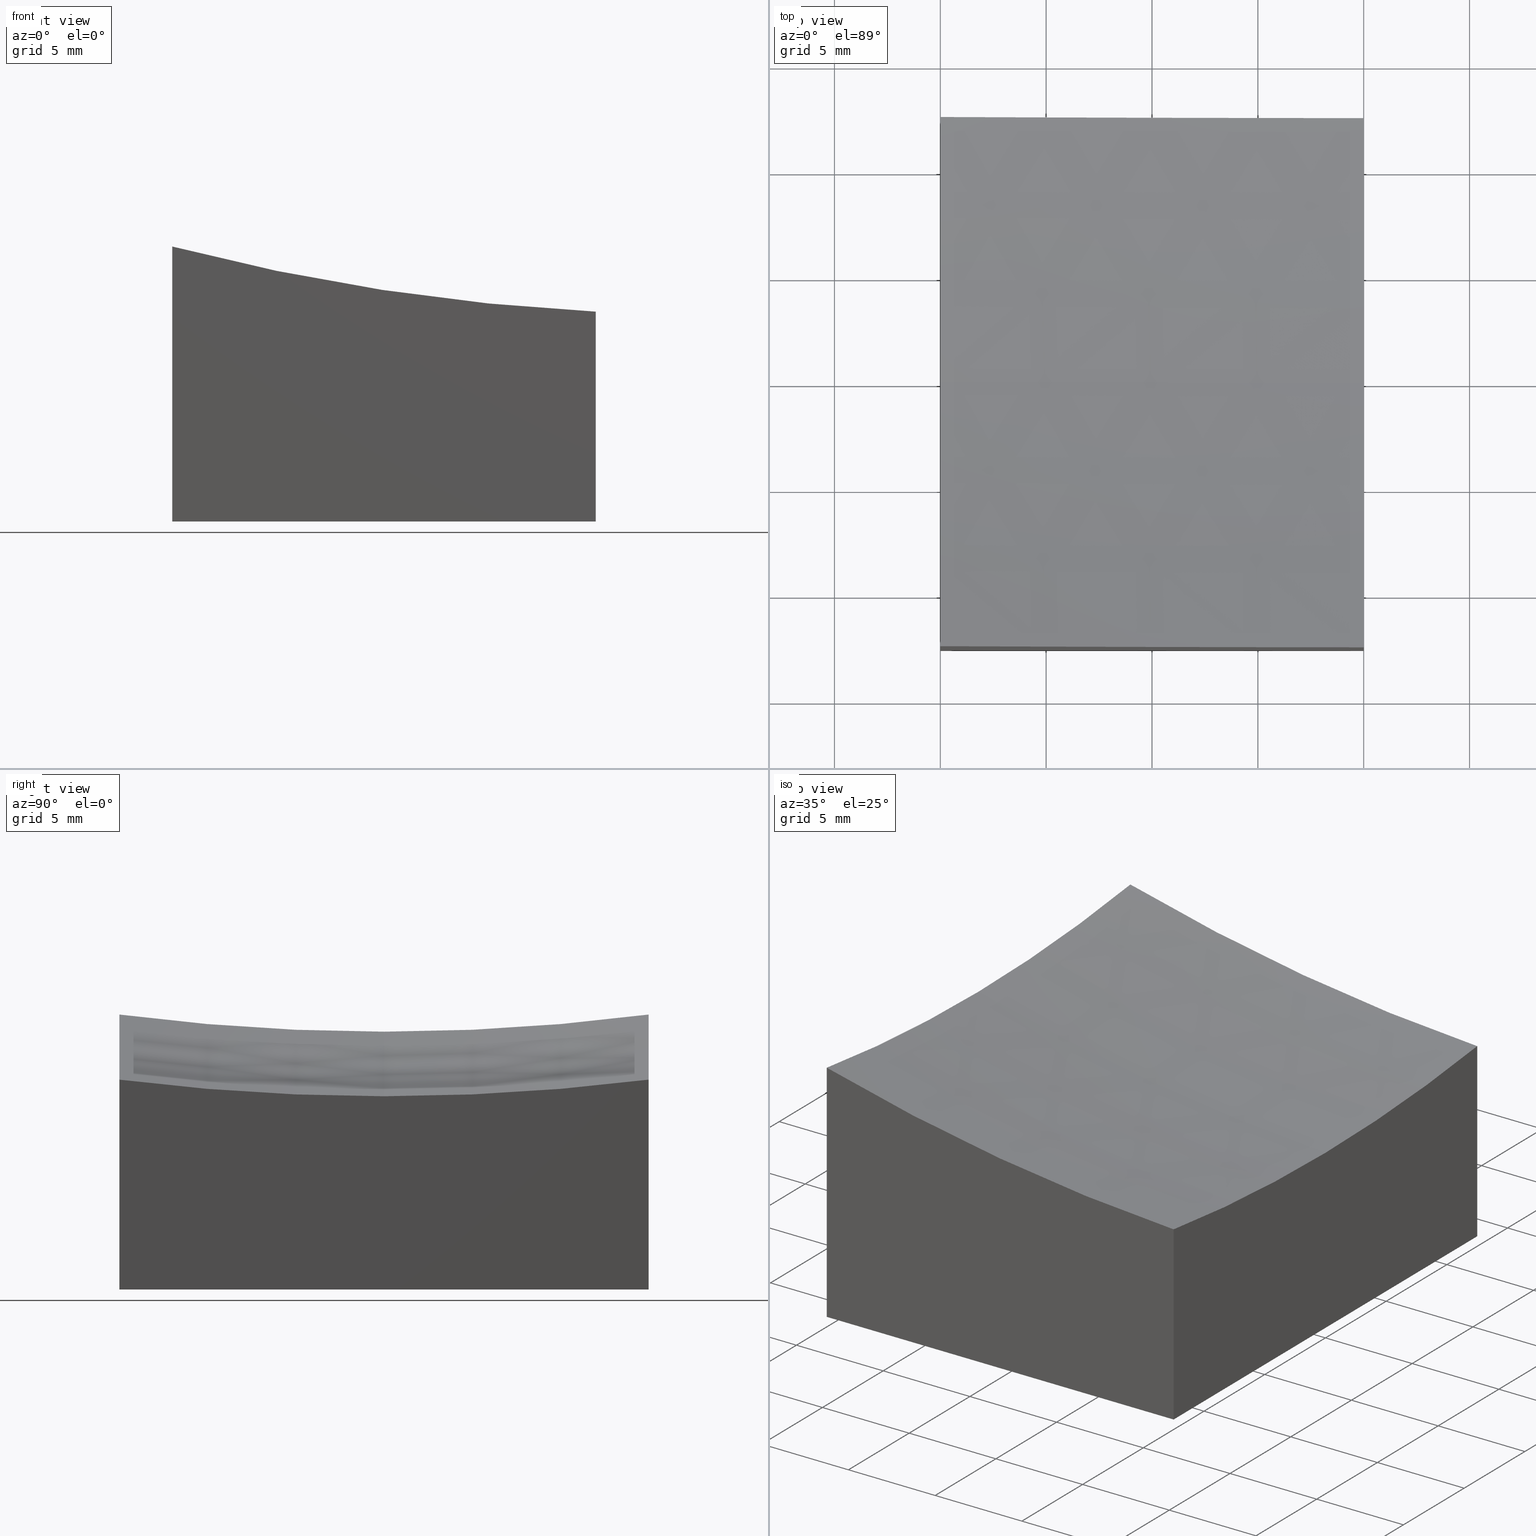
[diagram: canonical four-view strip — front | top / right | iso, engineering-drawing reading convention]
A machine part, canonical four-view strip (front | top / right | iso — engineering-drawing reading convention). The complete STEP part file that produces these views, byte-faithful:
ISO-10303-21;
HEADER;
FILE_DESCRIPTION (( 'STEP AP203' ),
    '1' );
FILE_NAME ('270643.step',
    '2024-12-24T02:21:56',
    ( '' ),
    ( '' ),
    'SwSTEP 2.0',
    'SolidWorks 2020',
    '' );
FILE_SCHEMA (( 'CONFIG_CONTROL_DESIGN' ));
ENDSEC;

DATA;
#1 = CALENDAR_DATE ( 2024, 24, 12 ) ;
#2 = VERTEX_POINT ( 'NONE', #99 ) ;
#3 = PERSON_AND_ORGANIZATION ( #152, #66 ) ;
#4 = PERSON_AND_ORGANIZATION ( #152, #66 ) ;
#5 = MANIFOLD_SOLID_BREP ( '�г�-��ת8', #116 ) ;
#6 = AXIS2_PLACEMENT_3D ( 'NONE', #168, #207, #15 ) ;
#7 = AXIS2_PLACEMENT_3D ( 'NONE', #267, #100, #229 ) ;
#8 = DIRECTION ( 'NONE',  ( -1.000000000000000000, 0.000000000000000000, 0.000000000000000000 ) ) ;
#9 = FACE_OUTER_BOUND ( 'NONE', #255, .T. ) ;
#10 = APPROVAL ( #215, 'δָ��' ) ;
#11 = ORIENTED_EDGE ( 'NONE', *, *, #239, .T. ) ;
#12 = ORIENTED_EDGE ( 'NONE', *, *, #246, .F. ) ;
#13 = CARTESIAN_POINT ( 'NONE',  ( -9.999999999999998224, -12.50000000000000355, 10.00000000000000000 ) ) ;
#14 = ORIENTED_EDGE ( 'NONE', *, *, #57, .T. ) ;
#15 = DIRECTION ( 'NONE',  ( 1.000000000000000000, 1.734723475976807094E-16, 0.000000000000000000 ) ) ;
#16 = APPROVAL ( #23, 'δָ��' ) ;
#17 = LINE ( 'NONE', #75, #261 ) ;
#18 = EDGE_CURVE ( 'NONE', #108, #32, #265, .T. ) ;
#19 = EDGE_CURVE ( 'NONE', #32, #2, #88, .T. ) ;
#20 = FACE_OUTER_BOUND ( 'NONE', #52, .T. ) ;
#21 = PERSON_AND_ORGANIZATION_ROLE ( 'design_owner' ) ;
#22 = ORIENTED_EDGE ( 'NONE', *, *, #167, .F. ) ;
#23 = APPROVAL_STATUS ( 'not_yet_approved' ) ;
#24 = VECTOR ( 'NONE', #123, 1000.000000000000000 ) ;
#25 = ORIENTED_EDGE ( 'NONE', *, *, #217, .T. ) ;
#26 = PRODUCT_DEFINITION_FORMATION_WITH_SPECIFIED_SOURCE ( '�κ�', '', #262, .NOT_KNOWN. ) ;
#27 = APPROVAL_ROLE ( '' ) ;
#28 = PERSON_AND_ORGANIZATION ( #152, #66 ) ;
#29 = CARTESIAN_POINT ( 'NONE',  ( -9.999999999999998224, -12.50000000000000355, 10.00000000000000000 ) ) ;
#30 = LINE ( 'NONE', #178, #33 ) ;
#31 = AXIS2_PLACEMENT_3D ( 'NONE', #60, #147, #228 ) ;
#32 = VERTEX_POINT ( 'NONE', #165 ) ;
#33 = VECTOR ( 'NONE', #202, 1000.000000000000000 ) ;
#34 = DIRECTION ( 'NONE',  ( -0.000000000000000000, -0.000000000000000000, -1.000000000000000000 ) ) ;
#35 = ORIENTED_EDGE ( 'NONE', *, *, #177, .F. ) ;
#36 = DIRECTION ( 'NONE',  ( 1.000000000000000000, 0.000000000000000000, -1.387778780781445676E-16 ) ) ;
#37 = CARTESIAN_POINT ( 'NONE',  ( 10.00000000000000178, 12.50000000000000000, 10.00000000000000000 ) ) ;
#38 = CC_DESIGN_PERSON_AND_ORGANIZATION_ASSIGNMENT ( #65, #21, ( #262 ) ) ;
#39 = EDGE_LOOP ( 'NONE', ( #12, #169, #206, #25 ) ) ;
#40 = CIRCLE ( 'NONE', #198, 100.0000000000000000 ) ;
#41 = PLANE ( 'NONE',  #183 ) ;
#42 = ADVANCED_BREP_SHAPE_REPRESENTATION ( '270643', ( #5, #174 ), #107 ) ;
#43 = VERTEX_POINT ( 'NONE', #209 ) ;
#44 = COORDINATED_UNIVERSAL_TIME_OFFSET ( 8, 0, .AHEAD. ) ;
#45 = VERTEX_POINT ( 'NONE', #182 ) ;
#46 = PERSON_AND_ORGANIZATION_ROLE ( 'creator' ) ;
#47 = COORDINATED_UNIVERSAL_TIME_OFFSET ( 8, 0, .AHEAD. ) ;
#48 = CC_DESIGN_DATE_AND_TIME_ASSIGNMENT ( #196, #62, ( #151 ) ) ;
#49 = CARTESIAN_POINT ( 'NONE',  ( 10.00000000000000178, -12.50000000000000000, -10.00000000000000000 ) ) ;
#50 = DIRECTION ( 'NONE',  ( 1.000000000000000000, 1.224646799147353207E-16, 0.000000000000000000 ) ) ;
#51 = UNCERTAINTY_MEASURE_WITH_UNIT (LENGTH_MEASURE( 1.000000000000000082E-05 ), #248, 'distance_accuracy_value', 'NONE');
#52 = EDGE_LOOP ( 'NONE', ( #213, #63, #277, #120 ) ) ;
#53 = CIRCLE ( 'NONE', #199, 99.87492177719090591 ) ;
#54 = DIRECTION ( 'NONE',  ( 0.000000000000000000, 0.000000000000000000, -1.000000000000000000 ) ) ;
#55 = CC_DESIGN_PERSON_AND_ORGANIZATION_ASSIGNMENT ( #175, #106, ( #244 ) ) ;
#56 = LINE ( 'NONE', #249, #24 ) ;
#57 = EDGE_CURVE ( 'NONE', #105, #43, #17, .T. ) ;
#58 = PLANE ( 'NONE',  #7 ) ;
#59 = EDGE_LOOP ( 'NONE', ( #171, #77, #35, #223 ) ) ;
#60 = CARTESIAN_POINT ( 'NONE',  ( 15.00000000000001421, 0.000000000000000000, 99.00000000000000000 ) ) ;
#61 = ORIENTED_EDGE ( 'NONE', *, *, #67, .T. ) ;
#62 = DATE_TIME_ROLE ( 'creation_date' ) ;
#63 = ORIENTED_EDGE ( 'NONE', *, *, #200, .T. ) ;
#64 = DIRECTION ( 'NONE',  ( 0.000000000000000000, 0.000000000000000000, 1.000000000000000000 ) ) ;
#65 = PERSON_AND_ORGANIZATION ( #152, #66 ) ;
#66 = ORGANIZATION ( 'δָ��', 'δָ��', '' ) ;
#67 = EDGE_CURVE ( 'NONE', #155, #105, #56, .T. ) ;
#68 = DATE_AND_TIME ( #238, #90 ) ;
#69 = ADVANCED_FACE ( 'NONE', ( #149 ), #250, .F. ) ;
#70 = DIRECTION ( 'NONE',  ( 1.000000000000000000, 1.748436918438156363E-16, 0.000000000000000000 ) ) ;
#71 = CARTESIAN_POINT ( 'NONE',  ( -9.999999999999998224, 12.49999999999999645, 2.985678151642384925 ) ) ;
#72 = CIRCLE ( 'NONE', #203, 99.21567416492216296 ) ;
#73 = DIRECTION ( 'NONE',  ( 0.000000000000000000, 0.000000000000000000, 1.000000000000000000 ) ) ;
#74 = CIRCLE ( 'NONE', #235, 96.82458365518542109 ) ;
#75 = CARTESIAN_POINT ( 'NONE',  ( -9.999999999999998224, -12.50000000000000355, -10.00000000000000000 ) ) ;
#76 = CARTESIAN_POINT ( 'NONE',  ( -10.00000000000000000, 0.000000000000000000, 99.00000000000000000 ) ) ;
#77 = ORIENTED_EDGE ( 'NONE', *, *, #140, .F. ) ;
#78 = CARTESIAN_POINT ( 'NONE',  ( 15.00000000000001421, 0.000000000000000000, 99.00000000000000000 ) ) ;
#79 = CARTESIAN_POINT ( 'NONE',  ( 0.000000000000000000, 0.000000000000000000, -10.00000000000000000 ) ) ;
#80 = COORDINATED_UNIVERSAL_TIME_OFFSET ( 8, 0, .AHEAD. ) ;
#81 = LOCAL_TIME ( 10, 21, 56.00000000000000000, #44 ) ;
#82 = ORIENTED_EDGE ( 'NONE', *, *, #177, .T. ) ;
#83 = DATE_AND_TIME ( #1, #157 ) ;
#84 = ORIENTED_EDGE ( 'NONE', *, *, #275, .F. ) ;
#85 = APPROVAL_DATE_TIME ( #68, #236 ) ;
#86 = APPROVAL_ROLE ( '' ) ;
#87 = PERSON_AND_ORGANIZATION_ROLE ( 'design_supplier' ) ;
#88 = CIRCLE ( 'NONE', #144, 99.21567416492216296 ) ;
#89 = EDGE_CURVE ( 'NONE', #2, #45, #243, .T. ) ;
#90 = LOCAL_TIME ( 10, 21, 56.00000000000000000, #47 ) ;
#91 = ADVANCED_FACE ( 'NONE', ( #104 ), #166, .F. ) ;
#92 = DIRECTION ( 'NONE',  ( 0.000000000000000000, 0.000000000000000000, 1.000000000000000000 ) ) ;
#93 = DIRECTION ( 'NONE',  ( 1.224646799147353207E-16, -1.000000000000000000, -1.487096486582537186E-32 ) ) ;
#94 = APPROVAL_PERSON_ORGANIZATION ( #28, #236, #158 ) ;
#95 = ORIENTED_EDGE ( 'NONE', *, *, #18, .F. ) ;
#96 = CC_DESIGN_PERSON_AND_ORGANIZATION_ASSIGNMENT ( #4, #276, ( #151 ) ) ;
#97 = VECTOR ( 'NONE', #260, 1000.000000000000000 ) ;
#98 = ORIENTED_EDGE ( 'NONE', *, *, #275, .T. ) ;
#99 = CARTESIAN_POINT ( 'NONE',  ( -9.999999999999998224, -12.50000000000000355, 2.985678151642384925 ) ) ;
#100 = DIRECTION ( 'NONE',  ( -1.734723475976807094E-16, 1.000000000000000000, 0.000000000000000000 ) ) ;
#101 = DIRECTION ( 'NONE',  ( -1.000000000000000000, 0.000000000000000000, 0.000000000000000000 ) ) ;
#102 = LINE ( 'NONE', #160, #162 ) ;
#103 =( NAMED_UNIT ( * ) PLANE_ANGLE_UNIT ( ) SI_UNIT ( $, .RADIAN. ) );
#104 = FACE_OUTER_BOUND ( 'NONE', #146, .T. ) ;
#105 = VERTEX_POINT ( 'NONE', #274 ) ;
#106 = PERSON_AND_ORGANIZATION_ROLE ( 'classification_officer' ) ;
#107 =( GEOMETRIC_REPRESENTATION_CONTEXT ( 3 ) GLOBAL_UNCERTAINTY_ASSIGNED_CONTEXT ( ( #51 ) ) GLOBAL_UNIT_ASSIGNED_CONTEXT ( ( #248, #103, #219 ) ) REPRESENTATION_CONTEXT ( 'NONE', 'WORKASPACE' ) );
#108 = VERTEX_POINT ( 'NONE', #272 ) ;
#109 = CALENDAR_DATE ( 2024, 24, 12 ) ;
#110 = DESIGN_CONTEXT ( 'detailed design', #204, 'design' ) ;
#111 = SECURITY_CLASSIFICATION_LEVEL ( 'unclassified' ) ;
#112 = VECTOR ( 'NONE', #115, 1000.000000000000000 ) ;
#113 = CC_DESIGN_APPROVAL ( #236, ( #244 ) ) ;
#114 = CARTESIAN_POINT ( 'NONE',  ( 10.00000000000000178, 12.50000000000000000, -0.08960591303207310343 ) ) ;
#115 = DIRECTION ( 'NONE',  ( -0.000000000000000000, -0.000000000000000000, -1.000000000000000000 ) ) ;
#116 = CLOSED_SHELL ( 'NONE', ( #91, #218, #264, #187, #128, #119, #69 ) ) ;
#117 = CC_DESIGN_PERSON_AND_ORGANIZATION_ASSIGNMENT ( #3, #46, ( #26 ) ) ;
#118 = ORIENTED_EDGE ( 'NONE', *, *, #89, .T. ) ;
#119 = ADVANCED_FACE ( 'NONE', ( #150 ), #41, .F. ) ;
#120 = ORIENTED_EDGE ( 'NONE', *, *, #140, .T. ) ;
#121 = APPROVAL_PERSON_ORGANIZATION ( #233, #16, #86 ) ;
#122 = PLANE ( 'NONE',  #193 ) ;
#123 = DIRECTION ( 'NONE',  ( -0.000000000000000000, -0.000000000000000000, -1.000000000000000000 ) ) ;
#124 = PLANE ( 'NONE',  #6 ) ;
#125 = DIRECTION ( 'NONE',  ( 1.000000000000000000, 0.000000000000000000, 0.000000000000000000 ) ) ;
#126 = DIRECTION ( 'NONE',  ( -1.734723475976807094E-16, 1.000000000000000000, 0.000000000000000000 ) ) ;
#127 = DIRECTION ( 'NONE',  ( 0.000000000000000000, -0.000000000000000000, 1.000000000000000000 ) ) ;
#128 = ADVANCED_FACE ( 'NONE', ( #20 ), #124, .F. ) ;
#129 = ORIENTED_EDGE ( 'NONE', *, *, #19, .F. ) ;
#130 = CALENDAR_DATE ( 2024, 24, 12 ) ;
#131 = ORIENTED_EDGE ( 'NONE', *, *, #246, .T. ) ;
#132 = CC_DESIGN_DATE_AND_TIME_ASSIGNMENT ( #83, #134, ( #244 ) ) ;
#133 = APPLICATION_PROTOCOL_DEFINITION ( 'international standard', 'config_control_design', 1994, #204 ) ;
#134 = DATE_TIME_ROLE ( 'classification_date' ) ;
#135 = PRODUCT_DEFINITION_SHAPE ( 'NONE', 'NONE',  #151 ) ;
#136 = DIRECTION ( 'NONE',  ( -1.000000000000000000, -1.734723475976807094E-16, 0.000000000000000000 ) ) ;
#137 = CARTESIAN_POINT ( 'NONE',  ( 15.00000000000001421, 0.000000000000000000, 99.00000000000000000 ) ) ;
#138 = LOCAL_TIME ( 10, 21, 56.00000000000000000, #80 ) ;
#139 = VECTOR ( 'NONE', #34, 1000.000000000000000 ) ;
#140 = EDGE_CURVE ( 'NONE', #192, #105, #102, .T. ) ;
#141 = EDGE_CURVE ( 'NONE', #45, #108, #40, .T. ) ;
#142 = APPLICATION_CONTEXT ( 'configuration controlled 3d designs of mechanical parts and assemblies' ) ;
#143 = VERTEX_POINT ( 'NONE', #114 ) ;
#144 = AXIS2_PLACEMENT_3D ( 'NONE', #271, #126, #227 ) ;
#145 = CARTESIAN_POINT ( 'NONE',  ( 10.00000000000000178, -12.50000000000000000, 10.00000000000000000 ) ) ;
#146 = EDGE_LOOP ( 'NONE', ( #211, #172, #84, #181 ) ) ;
#147 = DIRECTION ( 'NONE',  ( 0.000000000000000000, -1.000000000000000000, -0.000000000000000000 ) ) ;
#148 = LINE ( 'NONE', #145, #139 ) ;
#149 = FACE_OUTER_BOUND ( 'NONE', #234, .T. ) ;
#150 = FACE_OUTER_BOUND ( 'NONE', #59, .T. ) ;
#151 = PRODUCT_DEFINITION ( 'δ֪', '', #26, #110 ) ;
#152 = PERSON ( 'δָ��', 'δָ��', 'δָ��', ('δָ��'), ('δָ��'), ('δָ��') ) ;
#153 = VERTEX_POINT ( 'NONE', #222 ) ;
#154 = APPLICATION_PROTOCOL_DEFINITION ( 'international standard', 'config_control_design', 1994, #142 ) ;
#155 = VERTEX_POINT ( 'NONE', #71 ) ;
#156 = APPROVAL_DATE_TIME ( #212, #16 ) ;
#157 = LOCAL_TIME ( 10, 21, 56.00000000000000000, #194 ) ;
#158 = APPROVAL_ROLE ( '' ) ;
#159 = SHAPE_DEFINITION_REPRESENTATION ( #135, #42 ) ;
#160 = CARTESIAN_POINT ( 'NONE',  ( 10.00000000000000178, 12.50000000000000000, -10.00000000000000000 ) ) ;
#161 = LINE ( 'NONE', #49, #97 ) ;
#162 = VECTOR ( 'NONE', #136, 1000.000000000000000 ) ;
#163 = DIRECTION ( 'NONE',  ( -0.000000000000000000, -1.000000000000000000, -0.000000000000000000 ) ) ;
#164 = CC_DESIGN_PERSON_AND_ORGANIZATION_ASSIGNMENT ( #237, #87, ( #26 ) ) ;
#165 = CARTESIAN_POINT ( 'NONE',  ( 10.00000000000000178, -12.50000000000000000, -0.08960591303207310343 ) ) ;
#166 = SPHERICAL_SURFACE ( 'NONE', #31, 100.0000000000000000 ) ;
#167 = EDGE_CURVE ( 'NONE', #2, #43, #220, .T. ) ;
#168 = CARTESIAN_POINT ( 'NONE',  ( 10.00000000000000178, 12.50000000000000000, 10.00000000000000000 ) ) ;
#169 = ORIENTED_EDGE ( 'NONE', *, *, #19, .T. ) ;
#170 = CALENDAR_DATE ( 2024, 24, 12 ) ;
#171 = ORIENTED_EDGE ( 'NONE', *, *, #57, .F. ) ;
#172 = ORIENTED_EDGE ( 'NONE', *, *, #141, .T. ) ;
#173 = DATE_AND_TIME ( #109, #266 ) ;
#174 = AXIS2_PLACEMENT_3D ( 'NONE', #191, #64, #240 ) ;
#175 = PERSON_AND_ORGANIZATION ( #152, #66 ) ;
#176 = CARTESIAN_POINT ( 'NONE',  ( 15.00000000000001421, 12.50000000000000178, 99.00000000000000000 ) ) ;
#177 = EDGE_CURVE ( 'NONE', #153, #192, #161, .T. ) ;
#178 = CARTESIAN_POINT ( 'NONE',  ( 10.00000000000000178, -12.50000000000000000, -10.00000000000000000 ) ) ;
#179 = AXIS2_PLACEMENT_3D ( 'NONE', #78, #188, #36 ) ;
#180 = CC_DESIGN_SECURITY_CLASSIFICATION ( #244, ( #26 ) ) ;
#181 = ORIENTED_EDGE ( 'NONE', *, *, #200, .F. ) ;
#182 = CARTESIAN_POINT ( 'NONE',  ( -9.999999999999998224, -3.061616997868383043E-15, 2.175416344814578906 ) ) ;
#183 = AXIS2_PLACEMENT_3D ( 'NONE', #79, #127, #210 ) ;
#184 = LINE ( 'NONE', #37, #225 ) ;
#185 = CC_DESIGN_APPROVAL ( #16, ( #26 ) ) ;
#186 = DIRECTION ( 'NONE',  ( 0.000000000000000000, 0.000000000000000000, 1.000000000000000000 ) ) ;
#187 = ADVANCED_FACE ( 'NONE', ( #201 ), #242, .F. ) ;
#188 = DIRECTION ( 'NONE',  ( 0.000000000000000000, -1.000000000000000000, -0.000000000000000000 ) ) ;
#189 = CARTESIAN_POINT ( 'NONE',  ( 10.00000000000000178, 0.000000000000000000, 99.00000000000000000 ) ) ;
#190 = DIRECTION ( 'NONE',  ( 1.000000000000000000, 0.000000000000000000, 0.000000000000000000 ) ) ;
#191 = CARTESIAN_POINT ( 'NONE',  ( 0.000000000000000000, 0.000000000000000000, 0.000000000000000000 ) ) ;
#192 = VERTEX_POINT ( 'NONE', #221 ) ;
#193 = AXIS2_PLACEMENT_3D ( 'NONE', #13, #226, #270 ) ;
#194 = COORDINATED_UNIVERSAL_TIME_OFFSET ( 8, 0, .AHEAD. ) ;
#195 = ORIENTED_EDGE ( 'NONE', *, *, #89, .F. ) ;
#196 = DATE_AND_TIME ( #170, #138 ) ;
#197 = PERSON_AND_ORGANIZATION ( #152, #66 ) ;
#198 = AXIS2_PLACEMENT_3D ( 'NONE', #137, #93, #50 ) ;
#199 = AXIS2_PLACEMENT_3D ( 'NONE', #189, #273, #73 ) ;
#200 = EDGE_CURVE ( 'NONE', #155, #143, #72, .T. ) ;
#201 = FACE_OUTER_BOUND ( 'NONE', #268, .T. ) ;
#202 = DIRECTION ( 'NONE',  ( 1.000000000000000000, 1.734723475976807094E-16, -0.000000000000000000 ) ) ;
#203 = AXIS2_PLACEMENT_3D ( 'NONE', #176, #259, #70 ) ;
#204 = APPLICATION_CONTEXT ( 'configuration controlled 3d designs of mechanical parts and assemblies' ) ;
#205 = DIRECTION ( 'NONE',  ( -0.000000000000000000, -0.000000000000000000, -1.000000000000000000 ) ) ;
#206 = ORIENTED_EDGE ( 'NONE', *, *, #167, .T. ) ;
#207 = DIRECTION ( 'NONE',  ( 1.734723475976807094E-16, -1.000000000000000000, 0.000000000000000000 ) ) ;
#208 = AXIS2_PLACEMENT_3D ( 'NONE', #230, #101, #186 ) ;
#209 = CARTESIAN_POINT ( 'NONE',  ( -9.999999999999998224, -12.50000000000000355, -10.00000000000000000 ) ) ;
#210 = DIRECTION ( 'NONE',  ( 1.000000000000000000, 0.000000000000000000, -0.000000000000000000 ) ) ;
#211 = ORIENTED_EDGE ( 'NONE', *, *, #239, .F. ) ;
#212 = DATE_AND_TIME ( #130, #81 ) ;
#213 = ORIENTED_EDGE ( 'NONE', *, *, #67, .F. ) ;
#214 = AXIS2_PLACEMENT_3D ( 'NONE', #251, #190, #231 ) ;
#215 = APPROVAL_STATUS ( 'not_yet_approved' ) ;
#216 = APPROVAL_DATE_TIME ( #173, #10 ) ;
#217 = EDGE_CURVE ( 'NONE', #43, #153, #30, .T. ) ;
#218 = ADVANCED_FACE ( 'NONE', ( #9 ), #122, .F. ) ;
#219 =( NAMED_UNIT ( * ) SI_UNIT ( $, .STERADIAN. ) SOLID_ANGLE_UNIT ( ) );
#220 = LINE ( 'NONE', #29, #112 ) ;
#221 = CARTESIAN_POINT ( 'NONE',  ( 10.00000000000000178, 12.50000000000000000, -10.00000000000000000 ) ) ;
#222 = CARTESIAN_POINT ( 'NONE',  ( 10.00000000000000178, -12.50000000000000000, -10.00000000000000000 ) ) ;
#223 = ORIENTED_EDGE ( 'NONE', *, *, #217, .F. ) ;
#224 = EDGE_CURVE ( 'NONE', #143, #192, #184, .T. ) ;
#225 = VECTOR ( 'NONE', #205, 1000.000000000000000 ) ;
#226 = DIRECTION ( 'NONE',  ( 1.000000000000000000, 0.000000000000000000, 0.000000000000000000 ) ) ;
#227 = DIRECTION ( 'NONE',  ( -1.000000000000000000, -1.748436918438156363E-16, 0.000000000000000000 ) ) ;
#228 = DIRECTION ( 'NONE',  ( 1.000000000000000000, 0.000000000000000000, -1.387778780781445676E-16 ) ) ;
#229 = DIRECTION ( 'NONE',  ( -1.000000000000000000, -1.734723475976807094E-16, 0.000000000000000000 ) ) ;
#230 = CARTESIAN_POINT ( 'NONE',  ( 10.00000000000000178, 0.000000000000000000, 99.00000000000000000 ) ) ;
#231 = DIRECTION ( 'NONE',  ( 0.000000000000000000, 0.000000000000000000, -1.000000000000000000 ) ) ;
#232 = ORIENTED_EDGE ( 'NONE', *, *, #18, .T. ) ;
#233 = PERSON_AND_ORGANIZATION ( #152, #66 ) ;
#234 = EDGE_LOOP ( 'NONE', ( #252, #195, #129, #95 ) ) ;
#235 = AXIS2_PLACEMENT_3D ( 'NONE', #76, #125, #54 ) ;
#236 = APPROVAL ( #258, 'δָ��' ) ;
#237 = PERSON_AND_ORGANIZATION ( #152, #66 ) ;
#238 = CALENDAR_DATE ( 2024, 24, 12 ) ;
#239 = EDGE_CURVE ( 'NONE', #45, #155, #74, .T. ) ;
#240 = DIRECTION ( 'NONE',  ( 1.000000000000000000, 0.000000000000000000, 0.000000000000000000 ) ) ;
#241 = CARTESIAN_POINT ( 'NONE',  ( 10.00000000000000178, -12.50000000000000000, 10.00000000000000000 ) ) ;
#242 = PLANE ( 'NONE',  #263 ) ;
#243 = CIRCLE ( 'NONE', #214, 96.82458365518542109 ) ;
#244 = SECURITY_CLASSIFICATION ( '', '', #111 ) ;
#245 = ORIENTED_EDGE ( 'NONE', *, *, #224, .F. ) ;
#246 = EDGE_CURVE ( 'NONE', #32, #153, #148, .T. ) ;
#247 = FACE_OUTER_BOUND ( 'NONE', #39, .T. ) ;
#248 =( LENGTH_UNIT ( ) NAMED_UNIT ( * ) SI_UNIT ( .MILLI., .METRE. ) );
#249 = CARTESIAN_POINT ( 'NONE',  ( -9.999999999999998224, 12.49999999999999645, 10.00000000000000000 ) ) ;
#250 = SPHERICAL_SURFACE ( 'NONE', #179, 100.0000000000000000 ) ;
#251 = CARTESIAN_POINT ( 'NONE',  ( -10.00000000000000000, 0.000000000000000000, 99.00000000000000000 ) ) ;
#252 = ORIENTED_EDGE ( 'NONE', *, *, #141, .F. ) ;
#253 = CC_DESIGN_APPROVAL ( #10, ( #151 ) ) ;
#254 = MECHANICAL_CONTEXT ( 'NONE', #142, 'mechanical' ) ;
#255 = EDGE_LOOP ( 'NONE', ( #22, #118, #11, #61, #14 ) ) ;
#256 = PRODUCT_RELATED_PRODUCT_CATEGORY ( 'detail', '', ( #262 ) ) ;
#257 = COORDINATED_UNIVERSAL_TIME_OFFSET ( 8, 0, .AHEAD. ) ;
#258 = APPROVAL_STATUS ( 'not_yet_approved' ) ;
#259 = DIRECTION ( 'NONE',  ( 1.734723475976807094E-16, -1.000000000000000000, 0.000000000000000000 ) ) ;
#260 = DIRECTION ( 'NONE',  ( 0.000000000000000000, 1.000000000000000000, 0.000000000000000000 ) ) ;
#261 = VECTOR ( 'NONE', #163, 1000.000000000000000 ) ;
#262 = PRODUCT ( '270643', '270643', '', ( #254 ) ) ;
#263 = AXIS2_PLACEMENT_3D ( 'NONE', #241, #8, #92 ) ;
#264 = ADVANCED_FACE ( 'NONE', ( #247 ), #58, .F. ) ;
#265 = CIRCLE ( 'NONE', #208, 99.87492177719090591 ) ;
#266 = LOCAL_TIME ( 10, 21, 56.00000000000000000, #257 ) ;
#267 = CARTESIAN_POINT ( 'NONE',  ( 10.00000000000000178, -12.50000000000000000, 10.00000000000000000 ) ) ;
#268 = EDGE_LOOP ( 'NONE', ( #245, #98, #232, #131, #82 ) ) ;
#269 = APPROVAL_PERSON_ORGANIZATION ( #197, #10, #27 ) ;
#270 = DIRECTION ( 'NONE',  ( 0.000000000000000000, 0.000000000000000000, -1.000000000000000000 ) ) ;
#271 = CARTESIAN_POINT ( 'NONE',  ( 15.00000000000001599, -12.49999999999999822, 99.00000000000000000 ) ) ;
#272 = CARTESIAN_POINT ( 'NONE',  ( 10.00000000000000178, -6.123233995736767268E-16, -0.8749217771908888164 ) ) ;
#273 = DIRECTION ( 'NONE',  ( -1.000000000000000000, 0.000000000000000000, 0.000000000000000000 ) ) ;
#274 = CARTESIAN_POINT ( 'NONE',  ( -9.999999999999998224, 12.49999999999999645, -10.00000000000000000 ) ) ;
#275 = EDGE_CURVE ( 'NONE', #143, #108, #53, .T. ) ;
#276 = PERSON_AND_ORGANIZATION_ROLE ( 'creator' ) ;
#277 = ORIENTED_EDGE ( 'NONE', *, *, #224, .T. ) ;
ENDSEC;
END-ISO-10303-21;
